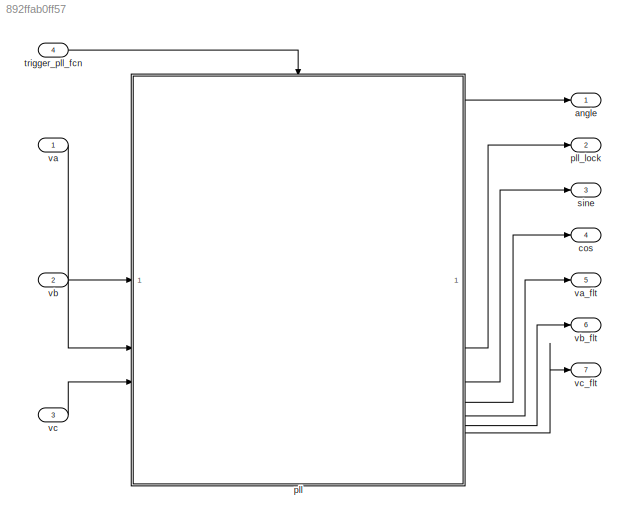
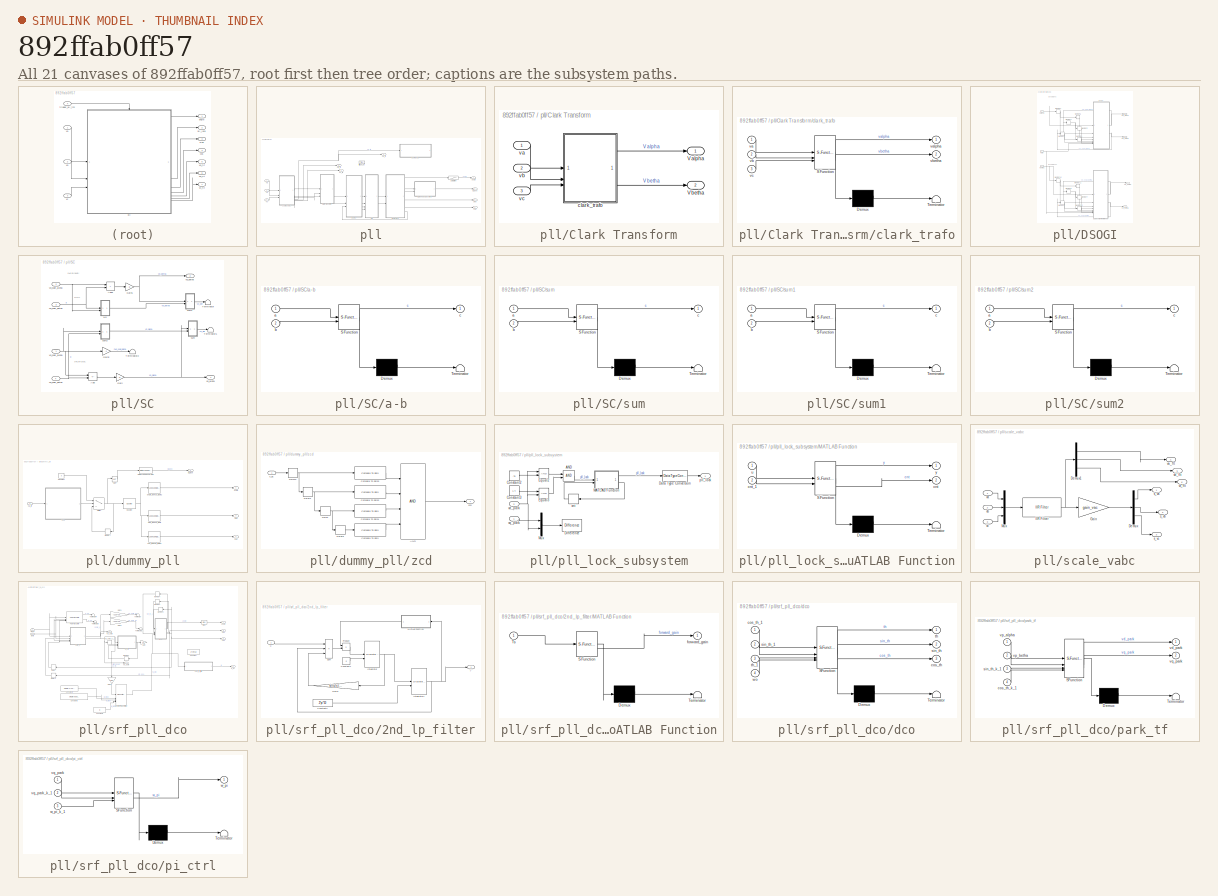
[diagram: thumbnail index - all 21 canvases of the model, root first then tree order]
MODEL slx_892ffab0ff57
KIND model
CONFIG AbsTol = auto
CONFIG EnableMultiTasking = off
CONFIG FixedStep = 1/10e3
CONFIG InitFcn = gain_vac=1/(220*sqrt(2));
CONFIG MaxStep = auto
CONFIG MinStep = auto
CONFIG RelTol = 1e-3
CONFIG SampleTimeConstraint = Unconstrained
CONFIG SolverName = FixedStepDiscrete
CONFIG StartTime = 0.0
CONFIG StopTime = 10.0
BLOCK [Outport] angle
BLOCK [Outport] cos
  Port = 4
BLOCK [SubSystem] pll
  RTWFcnNameOpts = Use subsystem name
  RTWFileNameOpts = Use subsystem name
  RTWMemSecFuncExecute = Default
  RTWMemSecFuncInitTerm = Default
  RTWSystemCode = Inline
BLOCK [SubSystem] pll/Clark Transform
  SystemSampleTime = ts
BLOCK [Outport] pll/Clark Transform/V alpha
BLOCK [Outport] pll/Clark Transform/V betha
  Port = 2
BLOCK [SubSystem] pll/Clark Transform/clark_trafo
  ErrorFcn = Stateflow.Translate.translate
  LibrarySourceBlock = simulink/User-Defined\nFunctions/MATLAB Function
  PermitHierarchicalResolution = ExplicitOnly
  SFBlockType = MATLAB Function
  TreatAsAtomicUnit = on
BLOCK [Demux] pll/Clark Transform/clark_trafo/ Demux 
  Outputs = 1
BLOCK [S-Function] pll/Clark Transform/clark_trafo/ SFunction 
  EnableBusSupport = on
  FunctionName = sf_sfun
  PortCounts = [3 3]
  SFcnIsStateOwnerBlock = off
  SFunctionDeploymentMode = off
  Tag = Stateflow S-Function 10
BLOCK [Terminator] pll/Clark Transform/clark_trafo/ Terminator 
BLOCK [Inport] pll/Clark Transform/clark_trafo/va
BLOCK [Outport] pll/Clark Transform/clark_trafo/valpha
BLOCK [Inport] pll/Clark Transform/clark_trafo/vb
  Port = 2
BLOCK [Outport] pll/Clark Transform/clark_trafo/vbetha
  Port = 2
BLOCK [Inport] pll/Clark Transform/clark_trafo/vc
  Port = 3
BLOCK [Inport] pll/Clark Transform/va
  OutDataTypeStr = single
BLOCK [Inport] pll/Clark Transform/vb
  OutDataTypeStr = single
  Port = 2
BLOCK [Inport] pll/Clark Transform/vc
  OutDataTypeStr = single
  Port = 3
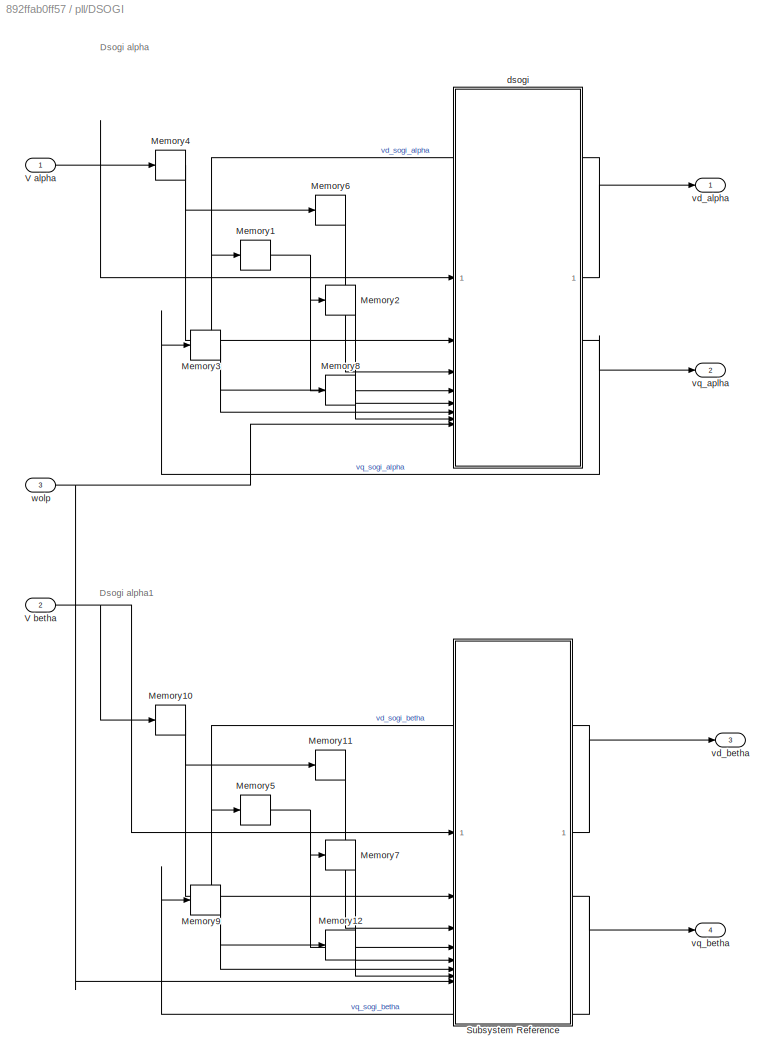
BLOCK [SubSystem] pll/DSOGI
  SystemSampleTime = ts
BLOCK [Memory] pll/DSOGI/Memory1
  InheritSampleTime = on
BLOCK [Memory] pll/DSOGI/Memory10
  InheritSampleTime = on
BLOCK [Memory] pll/DSOGI/Memory11
  InheritSampleTime = on
BLOCK [Memory] pll/DSOGI/Memory12
  InheritSampleTime = on
BLOCK [Memory] pll/DSOGI/Memory2
  InheritSampleTime = on
BLOCK [Memory] pll/DSOGI/Memory3
  InheritSampleTime = on
BLOCK [Memory] pll/DSOGI/Memory4
  InheritSampleTime = on
BLOCK [Memory] pll/DSOGI/Memory5
  InheritSampleTime = on
BLOCK [Memory] pll/DSOGI/Memory6
  InheritSampleTime = on
BLOCK [Memory] pll/DSOGI/Memory7
  InheritSampleTime = on
BLOCK [Memory] pll/DSOGI/Memory8
  InheritSampleTime = on
BLOCK [Memory] pll/DSOGI/Memory9
  InheritSampleTime = on
BLOCK [SubSystem] pll/DSOGI/Subsystem Reference
  ReferencedSubsystem = dsogi
BLOCK [Inport] pll/DSOGI/V alpha
  OutDataTypeStr = single
BLOCK [Inport] pll/DSOGI/V betha
  OutDataTypeStr = single
  Port = 2
BLOCK [SubSystem] pll/DSOGI/dsogi
  ReferencedSubsystem = dsogi
BLOCK [Outport] pll/DSOGI/vd_alpha
BLOCK [Outport] pll/DSOGI/vd_betha
  Port = 3
BLOCK [Outport] pll/DSOGI/vq_aplha
  Port = 2
BLOCK [Outport] pll/DSOGI/vq_betha
  Port = 4
BLOCK [Inport] pll/DSOGI/wolp
  OutDataTypeStr = single
  Port = 3
BLOCK [SubSystem] pll/SC
  SystemSampleTime = ts
BLOCK [Sum] pll/SC/Add
  IconShape = rectangular
  Inputs = +-
BLOCK [Sum] pll/SC/Add1
  IconShape = rectangular
BLOCK [Gain] pll/SC/Gain
  Gain = .5
  OutDataTypeStr = single
BLOCK [Gain] pll/SC/Gain1
  Gain = .5
  OutDataTypeStr = single
BLOCK [Gain] pll/SC/Gain2
  Commented = on
  Gain = -1
BLOCK [Terminator] pll/SC/Terminator
  Commented = on
BLOCK [Terminator] pll/SC/Terminator1
  Commented = on
BLOCK [Terminator] pll/SC/Terminator2
  Commented = on
BLOCK [SubSystem] pll/SC/a-b
  Commented = on
  ErrorFcn = Stateflow.Translate.translate
  LibrarySourceBlock = simulink/User-Defined\nFunctions/MATLAB Function
  PermitHierarchicalResolution = ExplicitOnly
  RTWSystemCode = Inline
  SFBlockType = MATLAB Function
  TreatAsAtomicUnit = on
  VariantControl = false()
BLOCK [Demux] pll/SC/a-b/ Demux 
  Outputs = 1
BLOCK [S-Function] pll/SC/a-b/ SFunction 
  EnableBusSupport = on
  FunctionName = sf_sfun
  PortCounts = [2 2]
  SFcnIsStateOwnerBlock = off
  SFunctionDeploymentMode = off
  Tag = Stateflow S-Function 17
BLOCK [Terminator] pll/SC/a-b/ Terminator 
BLOCK [Inport] pll/SC/a-b/a
BLOCK [Inport] pll/SC/a-b/b
  Port = 2
BLOCK [Outport] pll/SC/a-b/c
BLOCK [SubSystem] pll/SC/sum
  Commented = on
  ErrorFcn = Stateflow.Translate.translate
  LibrarySourceBlock = simulink/User-Defined\nFunctions/MATLAB Function
  PermitHierarchicalResolution = ExplicitOnly
  SFBlockType = MATLAB Function
  TreatAsAtomicUnit = on
  VariantControl = false()
BLOCK [Demux] pll/SC/sum/ Demux 
  Outputs = 1
BLOCK [S-Function] pll/SC/sum/ SFunction 
  EnableBusSupport = on
  FunctionName = sf_sfun
  PortCounts = [2 2]
  SFcnIsStateOwnerBlock = off
  SFunctionDeploymentMode = off
  Tag = Stateflow S-Function 21
BLOCK [Terminator] pll/SC/sum/ Terminator 
BLOCK [Inport] pll/SC/sum/a
BLOCK [Inport] pll/SC/sum/b
  Port = 2
BLOCK [Outport] pll/SC/sum/c
BLOCK [SubSystem] pll/SC/sum1
  Commented = on
  ErrorFcn = Stateflow.Translate.translate
  LibrarySourceBlock = simulink/User-Defined\nFunctions/MATLAB Function
  PermitHierarchicalResolution = ExplicitOnly
  SFBlockType = MATLAB Function
  TreatAsAtomicUnit = on
  VariantControl = false()
BLOCK [Demux] pll/SC/sum1/ Demux 
  Outputs = 1
BLOCK [S-Function] pll/SC/sum1/ SFunction 
  EnableBusSupport = on
  FunctionName = sf_sfun
  PortCounts = [2 2]
  SFcnIsStateOwnerBlock = off
  SFunctionDeploymentMode = off
  Tag = Stateflow S-Function 22
BLOCK [Terminator] pll/SC/sum1/ Terminator 
BLOCK [Inport] pll/SC/sum1/a
BLOCK [Inport] pll/SC/sum1/b
  Port = 2
BLOCK [Outport] pll/SC/sum1/c
BLOCK [SubSystem] pll/SC/sum2
  Commented = on
  ErrorFcn = Stateflow.Translate.translate
  LibrarySourceBlock = simulink/User-Defined\nFunctions/MATLAB Function
  PermitHierarchicalResolution = ExplicitOnly
  RTWSystemCode = Inline
  SFBlockType = MATLAB Function
  TreatAsAtomicUnit = on
  VariantControl = false()
BLOCK [Demux] pll/SC/sum2/ Demux 
  Outputs = 1
BLOCK [S-Function] pll/SC/sum2/ SFunction 
  EnableBusSupport = on
  FunctionName = sf_sfun
  PortCounts = [2 2]
  SFcnIsStateOwnerBlock = off
  SFunctionDeploymentMode = off
  Tag = Stateflow S-Function 18
BLOCK [Terminator] pll/SC/sum2/ Terminator 
BLOCK [Inport] pll/SC/sum2/a
BLOCK [Inport] pll/SC/sum2/b
  Port = 2
BLOCK [Outport] pll/SC/sum2/c
BLOCK [Inport] pll/SC/vd_sogi_alpha
  OutDataTypeStr = single
BLOCK [Inport] pll/SC/vd_sogi_betha
  OutDataTypeStr = single
  Port = 3
BLOCK [Outport] pll/SC/vp_alpha
BLOCK [Outport] pll/SC/vp_betha
  Port = 2
BLOCK [Inport] pll/SC/vq_sogi_alpha
  OutDataTypeStr = single
  Port = 2
BLOCK [Inport] pll/SC/vq_sogi_betha
  OutDataTypeStr = single
  Port = 4
BLOCK [Saturate] pll/Saturation
  LowerLimit = 0
  UpperLimit = 2*pi
BLOCK [Outport] pll/angle
BLOCK [Outport] pll/cos
  Port = 4
BLOCK [SubSystem] pll/dummy_pll
  Commented = on
BLOCK [Constant] pll/dummy_pll/Constant
  OutDataTypeStr = boolean
  SampleTime = -1
  Value = 0
BLOCK [Reference] pll/dummy_pll/Counter  REF=dspswit3/Counter
  SourceBlock = dspswit3/Counter
  SourceType = Counter
BLOCK [DataTypeConversion] pll/dummy_pll/Data Type Conversion
  OutDataTypeStr = single
  RndMeth = Floor
  SaturateOnIntegerOverflow = off
BLOCK [Memory] pll/dummy_pll/Memory
  InheritSampleTime = on
  InitialCondition = 1
  NameLocation = top
BLOCK [Logic] pll/dummy_pll/NOT
  AllPortsSameDT = off
  IconShape = distinctive
  Operator = NOT
  OutDataTypeStr = boolean
BLOCK [Switch] pll/dummy_pll/Switch
  Criteria = u2 > Threshold
  InputSameDT = off
  SaturateOnIntegerOverflow = off
BLOCK [Outport] pll/dummy_pll/angle
BLOCK [LookupNDDirect] pll/dummy_pll/angle_lookup_table2
  NumberOfTableDimensions = 1
  RemoveProtectionInput = on
  Table = single(2*pi*50*t)
BLOCK [Outport] pll/dummy_pll/cos
  Port = 4
BLOCK [LookupNDDirect] pll/dummy_pll/cos_lookup_table1
  NumberOfTableDimensions = 1
  RemoveProtectionInput = on
  Table = single(cos_th)
BLOCK [Outport] pll/dummy_pll/pll_lock
  Port = 2
BLOCK [Outport] pll/dummy_pll/sine
  Port = 3
BLOCK [LookupNDDirect] pll/dummy_pll/sine_lookup_table
  NumberOfTableDimensions = 1
  RemoveProtectionInput = on
  Table = single(sin_th)
BLOCK [Inport] pll/dummy_pll/va_flt
BLOCK [SubSystem] pll/dummy_pll/zcd
  SystemSampleTime = tsw
BLOCK [Logic] pll/dummy_pll/zcd/AND
  AllPortsSameDT = off
  Inputs = 4
  OutDataTypeStr = boolean
BLOCK [Reference] pll/dummy_pll/zcd/Compare To Zero  REF=simulink/Logic and Bit
Operations/Compare
To Zero
  SourceBlock = simulink/Logic and Bit\nOperations/Compare\nTo Zero
  SourceType = Compare To Zero
BLOCK [Reference] pll/dummy_pll/zcd/Compare To Zero1  REF=simulink/Logic and Bit
Operations/Compare
To Zero
  SourceBlock = simulink/Logic and Bit\nOperations/Compare\nTo Zero
  SourceType = Compare To Zero
BLOCK [Reference] pll/dummy_pll/zcd/Compare To Zero2  REF=simulink/Logic and Bit
Operations/Compare
To Zero
  SourceBlock = simulink/Logic and Bit\nOperations/Compare\nTo Zero
  SourceType = Compare To Zero
BLOCK [Reference] pll/dummy_pll/zcd/Compare To Zero3  REF=simulink/Logic and Bit
Operations/Compare
To Zero
  SourceBlock = simulink/Logic and Bit\nOperations/Compare\nTo Zero
  SourceType = Compare To Zero
BLOCK [Delay] pll/dummy_pll/zcd/Delay
  DelayLength = 4
  InputPortMap = u0
BLOCK [Delay] pll/dummy_pll/zcd/Delay1
  DelayLength = 1
  InputPortMap = u0
BLOCK [Delay] pll/dummy_pll/zcd/Delay2
  DelayLength = 0
  InputPortMap = u0
BLOCK [Delay] pll/dummy_pll/zcd/Delay3
  DelayLength = 5
  InputPortMap = u0
BLOCK [Inport] pll/dummy_pll/zcd/v_ac
  OutDataTypeStr = single
BLOCK [Outport] pll/dummy_pll/zcd/zcd
BLOCK [Outport] pll/pll_lock
  Port = 2
BLOCK [SubSystem] pll/pll_lock_subsystem
BLOCK [Logic] pll/pll_lock_subsystem/AND
  AllPortsSameDT = off
  IconShape = distinctive
  OutDataTypeStr = boolean
BLOCK [Constant] pll/pll_lock_subsystem/Constant2
  OutDataTypeStr = single
  SampleTime = -1
  Value = .75
BLOCK [Constant] pll/pll_lock_subsystem/Constant3
  OutDataTypeStr = single
  SampleTime = -1
  Value = 1.4
BLOCK [DataTypeConversion] pll/pll_lock_subsystem/Data Type Conversion
  OutDataTypeStr = single
  RndMeth = Floor
  SaturateOnIntegerOverflow = off
BLOCK [Reference] pll/pll_lock_subsystem/Difference  REF=simulink/Discrete/Difference
  Commented = on
  SourceBlock = simulink/Discrete/Difference
  SourceType = Difference
BLOCK [RelationalOperator] pll/pll_lock_subsystem/Equal2
  InputSameDT = off
  OutDataTypeStr = boolean
  RndMeth = Simplest
BLOCK [RelationalOperator] pll/pll_lock_subsystem/Equal3
  InputSameDT = off
  OutDataTypeStr = boolean
  RndMeth = Simplest
BLOCK [SubSystem] pll/pll_lock_subsystem/MATLAB Function
  ErrorFcn = Stateflow.Translate.translate
  PermitHierarchicalResolution = ExplicitOnly
  SFBlockType = MATLAB Function
  TreatAsAtomicUnit = on
BLOCK [Demux] pll/pll_lock_subsystem/MATLAB Function/ Demux 
  Outputs = 1
BLOCK [S-Function] pll/pll_lock_subsystem/MATLAB Function/ SFunction 
  EnableBusSupport = on
  FunctionName = sf_sfun
  PortCounts = [2 3]
  SFcnIsStateOwnerBlock = off
  SFunctionDeploymentMode = off
  Tag = Stateflow S-Function 3
BLOCK [Terminator] pll/pll_lock_subsystem/MATLAB Function/ Terminator 
BLOCK [Outport] pll/pll_lock_subsystem/MATLAB Function/cnt
  Port = 2
BLOCK [Inport] pll/pll_lock_subsystem/MATLAB Function/cnt_1
  Port = 2
BLOCK [Inport] pll/pll_lock_subsystem/MATLAB Function/u
BLOCK [Outport] pll/pll_lock_subsystem/MATLAB Function/y
BLOCK [Mux] pll/pll_lock_subsystem/Mux
  Commented = on
  DisplayOption = bar
  Inputs = 2
BLOCK [Memory] pll/pll_lock_subsystem/cnt
  InheritSampleTime = on
  NameLocation = top
BLOCK [Outport] pll/pll_lock_subsystem/pll_lock
BLOCK [Inport] pll/pll_lock_subsystem/vd_park
  Port = 2
BLOCK [Inport] pll/pll_lock_subsystem/vq_park
BLOCK [SubSystem] pll/scale_vabc
BLOCK [Demux] pll/scale_vabc/Demux
  Outputs = 3
BLOCK [Demux] pll/scale_vabc/Demux1
  Outputs = 3
BLOCK [Gain] pll/scale_vabc/Gain
  Gain = gain_vac
  OutDataTypeStr = single
BLOCK [Reference] pll/scale_vabc/IIR Filter  REF=mcbcontrolslib/IIR Filter
  Commented = through
  SourceBlock = mcbcontrolslib/IIR Filter
  SourceType = IIR Filter
BLOCK [Mux] pll/scale_vabc/Mux
  DisplayOption = bar
  Inputs = 3
BLOCK [Outport] pll/scale_vabc/s_va
BLOCK [Outport] pll/scale_vabc/s_vb
  Port = 2
BLOCK [Outport] pll/scale_vabc/s_vc
  Port = 3
BLOCK [Inport] pll/scale_vabc/va
BLOCK [Outport] pll/scale_vabc/va_flt
  Port = 4
BLOCK [Inport] pll/scale_vabc/vb
  Port = 2
BLOCK [Outport] pll/scale_vabc/vb_flt
  Port = 5
BLOCK [Inport] pll/scale_vabc/vc
  Port = 3
BLOCK [Outport] pll/scale_vabc/vc_flt
  Port = 6
BLOCK [Outport] pll/sine
  Port = 3
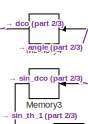
[diagram: pll/srf_pll_dco - part 1/3, top center region]
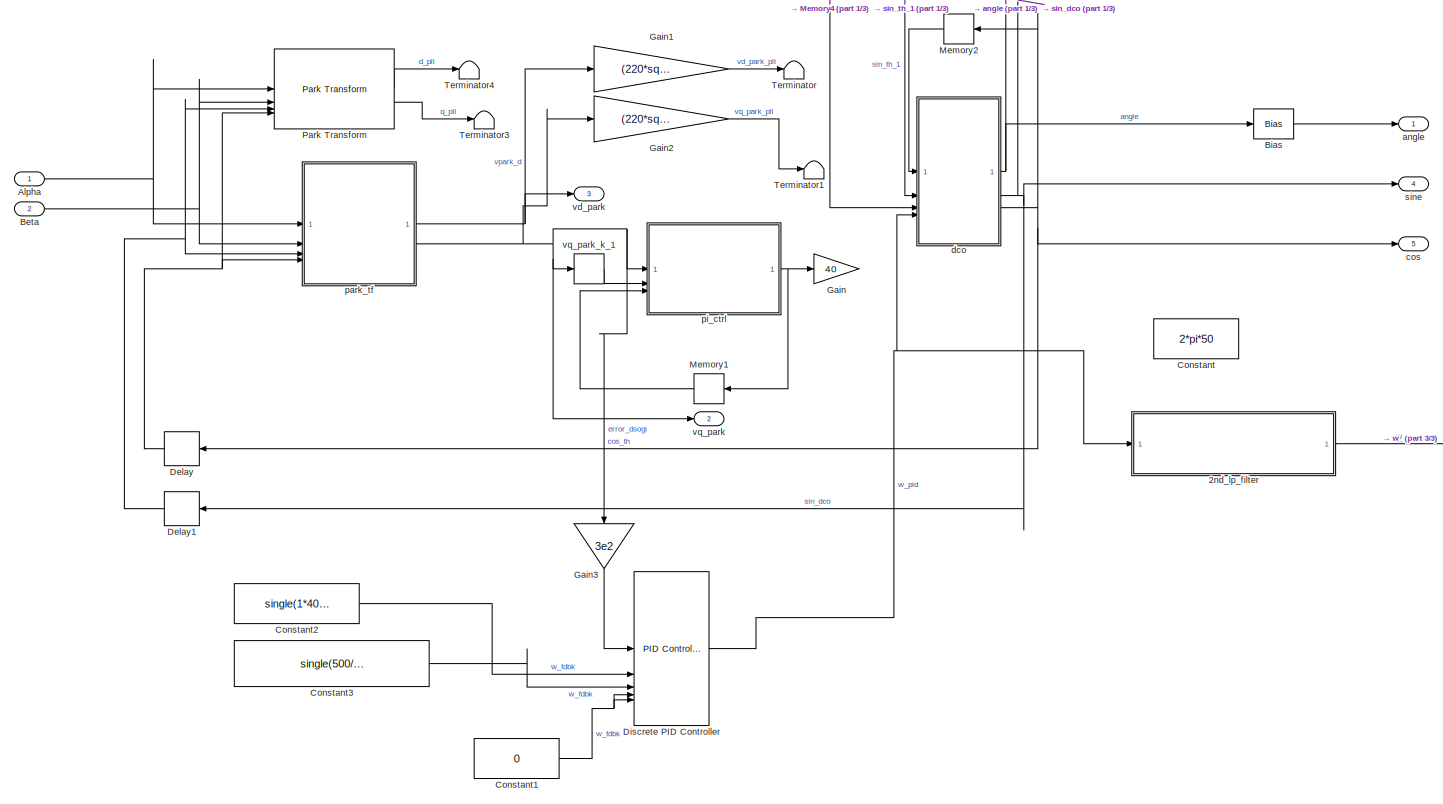
[diagram: pll/srf_pll_dco - part 2/3, most of the canvas]
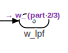
[diagram: pll/srf_pll_dco - part 3/3, middle right region]
BLOCK [SubSystem] pll/srf_pll_dco
BLOCK [SubSystem] pll/srf_pll_dco/2nd_lp_filter
BLOCK [Constant] pll/srf_pll_dco/2nd_lp_filter/Constant1
  OutDataTypeStr = single
  SampleTime = -1
  Value = 0
BLOCK [Constant] pll/srf_pll_dco/2nd_lp_filter/Constant2
  OutDataTypeStr = single
  SampleTime = -1
  Value = 2*pi*50
BLOCK [Gain] pll/srf_pll_dco/2nd_lp_filter/Gain1
  Gain = single(2*1/100)
BLOCK [DiscreteIntegrator] pll/srf_pll_dco/2nd_lp_filter/Integrator
  ICPrevOutput = DiscIntNeverNeededParam
  ICPrevScaledInput = DiscIntNeverNeededParam
  InitialConditionSetting = Auto
  InitialConditionSource = external
  IntegratorMethod = Accumulation: Forward Euler
  SampleTime = -1
  gainval = 1/8e3
BLOCK [DiscreteIntegrator] pll/srf_pll_dco/2nd_lp_filter/Integrator1
  ICPrevOutput = DiscIntNeverNeededParam
  ICPrevScaledInput = DiscIntNeverNeededParam
  InitialConditionSetting = Auto
  InitialConditionSource = external
  IntegratorMethod = Accumulation: Forward Euler
  SampleTime = -1
  gainval = 1/8e3
BLOCK [SubSystem] pll/srf_pll_dco/2nd_lp_filter/MATLAB Function
  ErrorFcn = Stateflow.Translate.translate
  NameLocation = top
  PermitHierarchicalResolution = ExplicitOnly
  SFBlockType = MATLAB Function
  TreatAsAtomicUnit = on
BLOCK [Demux] pll/srf_pll_dco/2nd_lp_filter/MATLAB Function/ Demux 
  Outputs = 1
BLOCK [S-Function] pll/srf_pll_dco/2nd_lp_filter/MATLAB Function/ SFunction 
  EnableBusSupport = on
  FunctionName = sf_sfun
  PortCounts = [1 2]
  SFcnIsStateOwnerBlock = off
  SFunctionDeploymentMode = off
  Tag = Stateflow S-Function 6
BLOCK [Terminator] pll/srf_pll_dco/2nd_lp_filter/MATLAB Function/ Terminator 
BLOCK [Inport] pll/srf_pll_dco/2nd_lp_filter/MATLAB Function/Ts
BLOCK [Outport] pll/srf_pll_dco/2nd_lp_filter/MATLAB Function/forward_gain
  VectorParamsAs1DForOutWhenUnconnected = off
BLOCK [Product] pll/srf_pll_dco/2nd_lp_filter/Product
BLOCK [Sum] pll/srf_pll_dco/2nd_lp_filter/Sum
  IconShape = rectangular
  Inputs = +--
BLOCK [Inport] pll/srf_pll_dco/2nd_lp_filter/u
BLOCK [Outport] pll/srf_pll_dco/2nd_lp_filter/y
  VectorParamsAs1DForOutWhenUnconnected = off
BLOCK [Inport] pll/srf_pll_dco/Alpha
  OutDataTypeStr = single
BLOCK [Inport] pll/srf_pll_dco/Beta
  OutDataTypeStr = single
  Port = 2
BLOCK [Bias] pll/srf_pll_dco/Bias
  Bias = pi
  Commented = through
  SaturateOnIntegerOverflow = off
BLOCK [Constant] pll/srf_pll_dco/Constant
  Commented = on
  OutDataTypeStr = single
  SampleTime = -1
  Value = 2*pi*50
BLOCK [Constant] pll/srf_pll_dco/Constant1
  OutDataTypeStr = single
  SampleTime = -1
  Value = 0
BLOCK [Constant] pll/srf_pll_dco/Constant2
  OutDataTypeStr = single
  SampleTime = -1
  Value = single(1*40);
BLOCK [Constant] pll/srf_pll_dco/Constant3
  OutDataTypeStr = single
  SampleTime = -1
  Value = single(500/8e3)
BLOCK [Delay] pll/srf_pll_dco/Delay
  DelayLength = 1
  InputPortMap = u0
  NameLocation = top
BLOCK [Delay] pll/srf_pll_dco/Delay1
  DelayLength = 1
  InputPortMap = u0
  NameLocation = top
BLOCK [Reference] pll/srf_pll_dco/Discrete PID Controller  REF=slpidlib/PID Controller
  LibrarySourceBlock = simulink/Discrete/Discrete PID Controller
  SourceBlock = slpidlib/PID Controller
  SourceType = PID 1dof
BLOCK [Gain] pll/srf_pll_dco/Gain
  Commented = on
  Gain = 40
  OutDataTypeStr = single
BLOCK [Gain] pll/srf_pll_dco/Gain1
  Gain = (220*sqrt(2))
BLOCK [Gain] pll/srf_pll_dco/Gain2
  Gain = (220*sqrt(2))
BLOCK [Gain] pll/srf_pll_dco/Gain3
  Gain = 3e2
  NameLocation = left
BLOCK [Memory] pll/srf_pll_dco/Memory1
  Commented = on
  InheritSampleTime = on
  NameLocation = top
BLOCK [Memory] pll/srf_pll_dco/Memory2
  InheritSampleTime = on
  InitialCondition = .99
  NameLocation = top
BLOCK [Memory] pll/srf_pll_dco/Memory3
  InheritSampleTime = on
  NameLocation = top
BLOCK [Memory] pll/srf_pll_dco/Memory4
  InheritSampleTime = on
  NameLocation = top
BLOCK [Reference] pll/srf_pll_dco/Park Transform  REF=mcbcontrolslib/Park Transform
  Commented = on
  LibrarySourceBlock = mcbhdllib/Controls/Math Transforms/Park Transform
  SourceBlock = mcbcontrolslib/Park Transform
  SourceType = Park Transform
BLOCK [Terminator] pll/srf_pll_dco/Terminator
BLOCK [Terminator] pll/srf_pll_dco/Terminator1
BLOCK [Terminator] pll/srf_pll_dco/Terminator3
BLOCK [Terminator] pll/srf_pll_dco/Terminator4
BLOCK [Outport] pll/srf_pll_dco/angle
BLOCK [Outport] pll/srf_pll_dco/cos
  Port = 5
BLOCK [SubSystem] pll/srf_pll_dco/dco
  ErrorFcn = Stateflow.Translate.translate
  LibrarySourceBlock = simulink/User-Defined\nFunctions/MATLAB Function
  PermitHierarchicalResolution = ExplicitOnly
  SFBlockType = MATLAB Function
  TreatAsAtomicUnit = on
  VariantControl = false()
BLOCK [Demux] pll/srf_pll_dco/dco/ Demux 
  Outputs = 1
BLOCK [S-Function] pll/srf_pll_dco/dco/ SFunction 
  EnableBusSupport = on
  FunctionName = sf_sfun
  PortCounts = [4 4]
  SFcnIsStateOwnerBlock = off
  SFunctionDeploymentMode = off
  Tag = Stateflow S-Function 23
BLOCK [Terminator] pll/srf_pll_dco/dco/ Terminator 
BLOCK [Outport] pll/srf_pll_dco/dco/cos_th
  Port = 3
BLOCK [Inport] pll/srf_pll_dco/dco/cos_th_1
BLOCK [Outport] pll/srf_pll_dco/dco/sin_th
  Port = 2
BLOCK [Inport] pll/srf_pll_dco/dco/sin_th_1
  Port = 2
BLOCK [Outport] pll/srf_pll_dco/dco/th
BLOCK [Inport] pll/srf_pll_dco/dco/th_1
  Port = 3
BLOCK [Inport] pll/srf_pll_dco/dco/wo
  Port = 4
BLOCK [SubSystem] pll/srf_pll_dco/park_tf
  ErrorFcn = Stateflow.Translate.translate
  LibrarySourceBlock = simulink/User-Defined\nFunctions/MATLAB Function
  PermitHierarchicalResolution = ExplicitOnly
  SFBlockType = MATLAB Function
  TreatAsAtomicUnit = on
  VariantControl = false()
BLOCK [Demux] pll/srf_pll_dco/park_tf/ Demux 
  Outputs = 1
BLOCK [S-Function] pll/srf_pll_dco/park_tf/ SFunction 
  EnableBusSupport = on
  FunctionName = sf_sfun
  PortCounts = [4 3]
  SFcnIsStateOwnerBlock = off
  SFunctionDeploymentMode = off
  Tag = Stateflow S-Function 24
BLOCK [Terminator] pll/srf_pll_dco/park_tf/ Terminator 
BLOCK [Inport] pll/srf_pll_dco/park_tf/cos_th_k_1
  Port = 4
BLOCK [Inport] pll/srf_pll_dco/park_tf/sin_th_k_1
  Port = 3
BLOCK [Outport] pll/srf_pll_dco/park_tf/vd_park
BLOCK [Inport] pll/srf_pll_dco/park_tf/vp_alpha
BLOCK [Inport] pll/srf_pll_dco/park_tf/vp_betha
  Port = 2
BLOCK [Outport] pll/srf_pll_dco/park_tf/vq_park
  Port = 2
BLOCK [SubSystem] pll/srf_pll_dco/pi_ctrl
  Commented = on
  ErrorFcn = Stateflow.Translate.translate
  LibrarySourceBlock = simulink/User-Defined\nFunctions/MATLAB Function
  PermitHierarchicalResolution = ExplicitOnly
  SFBlockType = MATLAB Function
  TreatAsAtomicUnit = on
  VariantControl = false()
BLOCK [Demux] pll/srf_pll_dco/pi_ctrl/ Demux 
  Outputs = 1
BLOCK [S-Function] pll/srf_pll_dco/pi_ctrl/ SFunction 
  EnableBusSupport = on
  FunctionName = sf_sfun
  PortCounts = [3 2]
  SFcnIsStateOwnerBlock = off
  SFunctionDeploymentMode = off
  Tag = Stateflow S-Function 25
BLOCK [Terminator] pll/srf_pll_dco/pi_ctrl/ Terminator 
BLOCK [Inport] pll/srf_pll_dco/pi_ctrl/vq_park
BLOCK [Inport] pll/srf_pll_dco/pi_ctrl/vq_park_k_1
  Port = 2
BLOCK [Outport] pll/srf_pll_dco/pi_ctrl/w_pi
BLOCK [Inport] pll/srf_pll_dco/pi_ctrl/w_pi_k_1
  Port = 3
BLOCK [Outport] pll/srf_pll_dco/sine
  Port = 4
BLOCK [Outport] pll/srf_pll_dco/vd_park
  Port = 3
BLOCK [Outport] pll/srf_pll_dco/vq_park
  Port = 2
BLOCK [Memory] pll/srf_pll_dco/vq_park_k_1
  Commented = on
  InheritSampleTime = on
BLOCK [Outport] pll/srf_pll_dco/w_lpf
  Port = 6
BLOCK [TriggerPort] pll/trigger_pll
  PortDimensions = 1
  SampleTime = 1/10e3
  StatesWhenEnabling = held
  TriggerType = function-call
  VariantControl = (inherit)
BLOCK [Inport] pll/va
  OutDataTypeStr = single
BLOCK [Outport] pll/va_flt
  Port = 5
BLOCK [Inport] pll/vb
  OutDataTypeStr = single
  Port = 2
BLOCK [Outport] pll/vb_flt
  Port = 6
BLOCK [Inport] pll/vc
  OutDataTypeStr = single
  Port = 3
BLOCK [Outport] pll/vc_flt
  Port = 7
BLOCK [Outport] pll_lock
  Port = 2
BLOCK [Outport] sine
  Port = 3
BLOCK [Inport] trigger_pll_fcn
  OutDataTypeStr = single
  OutputFunctionCall = on
  Port = 4
BLOCK [Inport] va
  OutDataTypeStr = single
BLOCK [Outport] va_flt
  Port = 5
BLOCK [Inport] vb
  OutDataTypeStr = single
  Port = 2
BLOCK [Outport] vb_flt
  Port = 6
BLOCK [Inport] vc
  OutDataTypeStr = single
  Port = 3
BLOCK [Outport] vc_flt
  Port = 7
ANNOTATION pll/DSOGI: Dsogi alpha
ANNOTATION pll/DSOGI: Dsogi alpha1
ANNOTATION pll/SC: c=0.5*(a-b);
ANNOTATION pll/SC: c=0.5*(a+b);
ANNOTATION pll/SC: NSC
LINE pll/Clark Transform/clark_trafo:1 -> pll/Clark Transform/V alpha:1
LINE pll/Clark Transform/clark_trafo:2 -> pll/Clark Transform/V betha:1
LINE pll/Clark Transform/va:1 -> pll/Clark Transform/clark_trafo:1
LINE pll/Clark Transform/vb:1 -> pll/Clark Transform/clark_trafo:2
LINE pll/Clark Transform/vc:1 -> pll/Clark Transform/clark_trafo:3
LINE pll/Clark Transform:1 -> pll/DSOGI:1
LINE pll/Clark Transform:2 -> pll/DSOGI:2
NET pll/DSOGI/Memory10:1 -> pll/DSOGI/Memory11:1, pll/DSOGI/Subsystem Reference:2
LINE pll/DSOGI/Memory11:1 -> pll/DSOGI/Subsystem Reference:3
LINE pll/DSOGI/Memory12:1 -> pll/DSOGI/Subsystem Reference:7
NET pll/DSOGI/Memory1:1 -> pll/DSOGI/Memory2:1, pll/DSOGI/dsogi:4
LINE pll/DSOGI/Memory2:1 -> pll/DSOGI/dsogi:5
NET pll/DSOGI/Memory3:1 -> pll/DSOGI/Memory8:1, pll/DSOGI/dsogi:6
NET pll/DSOGI/Memory4:1 -> pll/DSOGI/Memory6:1, pll/DSOGI/dsogi:2
NET pll/DSOGI/Memory5:1 -> pll/DSOGI/Memory7:1, pll/DSOGI/Subsystem Reference:4
LINE pll/DSOGI/Memory6:1 -> pll/DSOGI/dsogi:3
LINE pll/DSOGI/Memory7:1 -> pll/DSOGI/Subsystem Reference:5
LINE pll/DSOGI/Memory8:1 -> pll/DSOGI/dsogi:7
NET pll/DSOGI/Memory9:1 -> pll/DSOGI/Memory12:1, pll/DSOGI/Subsystem Reference:6
NET pll/DSOGI/Subsystem Reference:1 -> pll/DSOGI/Memory5:1, pll/DSOGI/vd_betha:1
NET pll/DSOGI/Subsystem Reference:2 -> pll/DSOGI/Memory9:1, pll/DSOGI/vq_betha:1
NET pll/DSOGI/V alpha:1 -> pll/DSOGI/Memory4:1, pll/DSOGI/dsogi:1
NET pll/DSOGI/V betha:1 -> pll/DSOGI/Memory10:1, pll/DSOGI/Subsystem Reference:1
NET pll/DSOGI/dsogi:1 -> pll/DSOGI/Memory1:1, pll/DSOGI/vd_alpha:1
NET pll/DSOGI/dsogi:2 -> pll/DSOGI/Memory3:1, pll/DSOGI/vq_aplha:1
NET pll/DSOGI/wolp:1 -> pll/DSOGI/Subsystem Reference:8, pll/DSOGI/dsogi:8
LINE pll/DSOGI:1 -> pll/SC:1
LINE pll/DSOGI:2 -> pll/SC:2
LINE pll/DSOGI:3 -> pll/SC:3
LINE pll/DSOGI:4 -> pll/SC:4
LINE pll/SC/Add1:1 -> pll/SC/Gain1:1
LINE pll/SC/Add:1 -> pll/SC/Gain:1
NET pll/SC/Gain1:1 -> pll/SC/sum1:1, pll/SC/vp_betha:1
LINE pll/SC/Gain2:1 -> pll/SC/Terminator2:1
NET pll/SC/Gain:1 -> pll/SC/sum:1, pll/SC/vp_alpha:1
LINE pll/SC/a-b:1 -> pll/SC/sum1:2
LINE pll/SC/sum1:1 -> pll/SC/Terminator:1
LINE pll/SC/sum2:1 -> pll/SC/sum:2
LINE pll/SC/sum:1 -> pll/SC/Terminator1:1
NET pll/SC/vd_sogi_alpha:1 -> pll/SC/Add:1, pll/SC/Gain2:1, pll/SC/sum2:1
NET pll/SC/vd_sogi_betha:1 -> pll/SC/Add1:2, pll/SC/a-b:1
NET pll/SC/vq_sogi_alpha:1 -> pll/SC/Add1:1, pll/SC/a-b:2
NET pll/SC/vq_sogi_betha:1 -> pll/SC/Add:2, pll/SC/sum2:2
LINE pll/SC:1 -> pll/srf_pll_dco:1
LINE pll/SC:2 -> pll/srf_pll_dco:2
LINE pll/Saturation:1 -> pll/angle:1
LINE pll/dummy_pll/Constant:1 -> pll/dummy_pll/Switch:1
NET pll/dummy_pll/Counter:1 -> pll/dummy_pll/angle_lookup_table2:1, pll/dummy_pll/cos_lookup_table1:1, pll/dummy_pll/sine_lookup_table:1
LINE pll/dummy_pll/Data Type Conversion:1 -> pll/dummy_pll/pll_lock:1
LINE pll/dummy_pll/Memory:1 -> pll/dummy_pll/Switch:3
LINE pll/dummy_pll/NOT:1 -> pll/dummy_pll/Data Type Conversion:1
NET pll/dummy_pll/Switch:1 -> pll/dummy_pll/Counter:1, pll/dummy_pll/Memory:1, pll/dummy_pll/NOT:1
LINE pll/dummy_pll/angle_lookup_table2:1 -> pll/dummy_pll/angle:1
LINE pll/dummy_pll/cos_lookup_table1:1 -> pll/dummy_pll/cos:1
LINE pll/dummy_pll/sine_lookup_table:1 -> pll/dummy_pll/sine:1
LINE pll/dummy_pll/va_flt:1 -> pll/dummy_pll/zcd:1
LINE pll/dummy_pll/zcd/AND:1 -> pll/dummy_pll/zcd/zcd:1
LINE pll/dummy_pll/zcd/Compare To Zero1:1 -> pll/dummy_pll/zcd/AND:3
LINE pll/dummy_pll/zcd/Compare To Zero2:1 -> pll/dummy_pll/zcd/AND:2
LINE pll/dummy_pll/zcd/Compare To Zero3:1 -> pll/dummy_pll/zcd/AND:1
LINE pll/dummy_pll/zcd/Compare To Zero:1 -> pll/dummy_pll/zcd/AND:4
NET pll/dummy_pll/zcd/Delay1:1 -> pll/dummy_pll/zcd/Compare To Zero2:1, pll/dummy_pll/zcd/Delay:1
NET pll/dummy_pll/zcd/Delay2:1 -> pll/dummy_pll/zcd/Compare To Zero3:1, pll/dummy_pll/zcd/Delay1:1
LINE pll/dummy_pll/zcd/Delay3:1 -> pll/dummy_pll/zcd/Compare To Zero:1
NET pll/dummy_pll/zcd/Delay:1 -> pll/dummy_pll/zcd/Compare To Zero1:1, pll/dummy_pll/zcd/Delay3:1
LINE pll/dummy_pll/zcd/v_ac:1 -> pll/dummy_pll/zcd/Delay2:1
LINE pll/dummy_pll/zcd:1 -> pll/dummy_pll/Switch:2
LINE pll/pll_lock_subsystem/AND:1 -> pll/pll_lock_subsystem/MATLAB Function:1
LINE pll/pll_lock_subsystem/Constant2:1 -> pll/pll_lock_subsystem/Equal2:2
LINE pll/pll_lock_subsystem/Constant3:1 -> pll/pll_lock_subsystem/Equal3:1
LINE pll/pll_lock_subsystem/Data Type Conversion:1 -> pll/pll_lock_subsystem/pll_lock:1
LINE pll/pll_lock_subsystem/Equal2:1 -> pll/pll_lock_subsystem/AND:1
LINE pll/pll_lock_subsystem/Equal3:1 -> pll/pll_lock_subsystem/AND:2
LINE pll/pll_lock_subsystem/MATLAB Function:1 -> pll/pll_lock_subsystem/Data Type Conversion:1
LINE pll/pll_lock_subsystem/MATLAB Function:2 -> pll/pll_lock_subsystem/cnt:1
LINE pll/pll_lock_subsystem/Mux:1 -> pll/pll_lock_subsystem/Difference:1
LINE pll/pll_lock_subsystem/cnt:1 -> pll/pll_lock_subsystem/MATLAB Function:2
NET pll/pll_lock_subsystem/vd_park:1 -> pll/pll_lock_subsystem/Equal2:1, pll/pll_lock_subsystem/Equal3:2, pll/pll_lock_subsystem/Mux:2
LINE pll/pll_lock_subsystem/vq_park:1 -> pll/pll_lock_subsystem/Mux:1
LINE pll/pll_lock_subsystem:1 -> pll/pll_lock:1
LINE pll/scale_vabc/Demux1:1 -> pll/scale_vabc/va_flt:1
LINE pll/scale_vabc/Demux1:2 -> pll/scale_vabc/vb_flt:1
LINE pll/scale_vabc/Demux1:3 -> pll/scale_vabc/vc_flt:1
LINE pll/scale_vabc/Demux:1 -> pll/scale_vabc/s_va:1
LINE pll/scale_vabc/Demux:2 -> pll/scale_vabc/s_vb:1
LINE pll/scale_vabc/Demux:3 -> pll/scale_vabc/s_vc:1
LINE pll/scale_vabc/Gain:1 -> pll/scale_vabc/Demux:1
NET pll/scale_vabc/IIR Filter:1 -> pll/scale_vabc/Demux1:1, pll/scale_vabc/Gain:1
LINE pll/scale_vabc/Mux:1 -> pll/scale_vabc/IIR Filter:1
LINE pll/scale_vabc/va:1 -> pll/scale_vabc/Mux:1
LINE pll/scale_vabc/vb:1 -> pll/scale_vabc/Mux:2
LINE pll/scale_vabc/vc:1 -> pll/scale_vabc/Mux:3
LINE pll/scale_vabc:1 -> pll/Clark Transform:1
LINE pll/scale_vabc:2 -> pll/Clark Transform:2
LINE pll/scale_vabc:3 -> pll/Clark Transform:3
NET pll/scale_vabc:4 -> pll/dummy_pll:1, pll/va_flt:1
LINE pll/scale_vabc:5 -> pll/vb_flt:1
LINE pll/scale_vabc:6 -> pll/vc_flt:1
LINE pll/srf_pll_dco/2nd_lp_filter/Constant1:1 -> pll/srf_pll_dco/2nd_lp_filter/Integrator:2
LINE pll/srf_pll_dco/2nd_lp_filter/Constant2:1 -> pll/srf_pll_dco/2nd_lp_filter/Integrator1:2
LINE pll/srf_pll_dco/2nd_lp_filter/Gain1:1 -> pll/srf_pll_dco/2nd_lp_filter/Sum:3
NET pll/srf_pll_dco/2nd_lp_filter/Integrator1:1 -> pll/srf_pll_dco/2nd_lp_filter/MATLAB Function:1, pll/srf_pll_dco/2nd_lp_filter/Sum:2, pll/srf_pll_dco/2nd_lp_filter/y:1
NET pll/srf_pll_dco/2nd_lp_filter/Integrator:1 -> pll/srf_pll_dco/2nd_lp_filter/Gain1:1, pll/srf_pll_dco/2nd_lp_filter/Integrator1:1
LINE pll/srf_pll_dco/2nd_lp_filter/MATLAB Function:1 -> pll/srf_pll_dco/2nd_lp_filter/Product:1
LINE pll/srf_pll_dco/2nd_lp_filter/Product:1 -> pll/srf_pll_dco/2nd_lp_filter/Integrator:1
LINE pll/srf_pll_dco/2nd_lp_filter/Sum:1 -> pll/srf_pll_dco/2nd_lp_filter/Product:2
LINE pll/srf_pll_dco/2nd_lp_filter/u:1 -> pll/srf_pll_dco/2nd_lp_filter/Sum:1
LINE pll/srf_pll_dco/2nd_lp_filter:1 -> pll/srf_pll_dco/w_lpf:1
NET pll/srf_pll_dco/Alpha:1 -> pll/srf_pll_dco/Park Transform:1, pll/srf_pll_dco/park_tf:1
NET pll/srf_pll_dco/Beta:1 -> pll/srf_pll_dco/Park Transform:2, pll/srf_pll_dco/park_tf:2
LINE pll/srf_pll_dco/Bias:1 -> pll/srf_pll_dco/angle:1
NET pll/srf_pll_dco/Constant1:1 -> pll/srf_pll_dco/Discrete PID Controller:4, pll/srf_pll_dco/Discrete PID Controller:5
LINE pll/srf_pll_dco/Constant2:1 -> pll/srf_pll_dco/Discrete PID Controller:2
LINE pll/srf_pll_dco/Constant3:1 -> pll/srf_pll_dco/Discrete PID Controller:3
NET pll/srf_pll_dco/Delay1:1 -> pll/srf_pll_dco/Park Transform:3, pll/srf_pll_dco/park_tf:3
NET pll/srf_pll_dco/Delay:1 -> pll/srf_pll_dco/Park Transform:4, pll/srf_pll_dco/park_tf:4
NET pll/srf_pll_dco/Discrete PID Controller:1 -> pll/srf_pll_dco/2nd_lp_filter:1, pll/srf_pll_dco/dco:4
LINE pll/srf_pll_dco/Gain1:1 -> pll/srf_pll_dco/Terminator:1
LINE pll/srf_pll_dco/Gain2:1 -> pll/srf_pll_dco/Terminator1:1
LINE pll/srf_pll_dco/Gain3:1 -> pll/srf_pll_dco/Discrete PID Controller:1
LINE pll/srf_pll_dco/Memory1:1 -> pll/srf_pll_dco/pi_ctrl:3
LINE pll/srf_pll_dco/Memory2:1 -> pll/srf_pll_dco/dco:1
LINE pll/srf_pll_dco/Memory3:1 -> pll/srf_pll_dco/dco:2
LINE pll/srf_pll_dco/Memory4:1 -> pll/srf_pll_dco/dco:3
LINE pll/srf_pll_dco/Park Transform:1 -> pll/srf_pll_dco/Terminator4:1
LINE pll/srf_pll_dco/Park Transform:2 -> pll/srf_pll_dco/Terminator3:1
NET pll/srf_pll_dco/dco:1 -> pll/srf_pll_dco/Bias:1, pll/srf_pll_dco/Memory4:1
NET pll/srf_pll_dco/dco:2 -> pll/srf_pll_dco/Delay1:1, pll/srf_pll_dco/Memory3:1, pll/srf_pll_dco/sine:1
NET pll/srf_pll_dco/dco:3 -> pll/srf_pll_dco/Delay:1, pll/srf_pll_dco/Memory2:1, pll/srf_pll_dco/cos:1
NET pll/srf_pll_dco/park_tf:1 -> pll/srf_pll_dco/Gain1:1, pll/srf_pll_dco/vd_park:1
NET pll/srf_pll_dco/park_tf:2 -> pll/srf_pll_dco/Gain2:1, pll/srf_pll_dco/Gain3:1, pll/srf_pll_dco/pi_ctrl:1, pll/srf_pll_dco/vq_park:1, pll/srf_pll_dco/vq_park_k_1:1
NET pll/srf_pll_dco/pi_ctrl:1 -> pll/srf_pll_dco/Gain:1, pll/srf_pll_dco/Memory1:1
LINE pll/srf_pll_dco/vq_park_k_1:1 -> pll/srf_pll_dco/pi_ctrl:2
LINE pll/srf_pll_dco:1 -> pll/Saturation:1
LINE pll/srf_pll_dco:2 -> pll/pll_lock_subsystem:1
LINE pll/srf_pll_dco:3 -> pll/pll_lock_subsystem:2
LINE pll/srf_pll_dco:4 -> pll/sine:1
LINE pll/srf_pll_dco:5 -> pll/cos:1
LINE pll/srf_pll_dco:6 -> pll/DSOGI:3
LINE pll/va:1 -> pll/scale_vabc:1
LINE pll/vb:1 -> pll/scale_vabc:2
LINE pll/vc:1 -> pll/scale_vabc:3
LINE pll:1 -> angle:1
LINE pll:2 -> pll_lock:1
LINE pll:3 -> sine:1
LINE pll:4 -> cos:1
LINE pll:5 -> va_flt:1
LINE pll:6 -> vb_flt:1
LINE pll:7 -> vc_flt:1
LINE trigger_pll_fcn:1 -> pll:trigger
LINE va:1 -> pll:1
LINE vb:1 -> pll:2
LINE vc:1 -> pll:3
note: NET lines group one-source signal fan-out (src -> all destinations, sorted); 1:1 wires keep LINE
CHART pll/pll_lock_subsystem/MATLAB Function states=1 transitions=1
  STATE_LABEL 'eML_blk_kernel()'
  STATE_LABEL 'SCRIPT:\nfunction [y,cnt] = fcn(u, cnt_1)\ny=false;\ncnt = cnt_1;\nif u == true\n   if cnt_1<=single(5*(10e3/50)) \n      cnt = cnt_1 + single(1.0);\n      y=false;\n   else \n      y=true;\n   end\nelse \n   y=false;\n   cnt = single(0.0);\nend\n\n\n\n\n'
CHART pll/srf_pll_dco/2nd_lp_filter/MATLAB Function states=1 transitions=1
  STATE_LABEL 'eML_blk_kernel()'
  STATE_LABEL 'SCRIPT:\nfunction forward_gain  = fcn(Ts)\n\n\n    forward_gain = single(1/max(Ts,single(1/(100*100))));\n   \nend'
CHART pll/Clark Transform/clark_trafo states=1 transitions=1
  STATE_LABEL 'eML_blk_kernel()'
  STATE_LABEL 'SCRIPT:\nfunction [valpha, vbetha] = clarktrans(va,vb,vc)\ntw_thr = single((2/3));\nsqrt_3 = single(sqrt(3));\npoint_5 = single(.5);\n\nvalpha=(tw_thr*(va-(point_5*vb)-(point_5*vc)));\nvbetha=( (tw_thr*(sqrt_3*point_5))*(vb-vc) );\n\nend\n\n'
CHART pll/SC/a-b states=1 transitions=1
  STATE_LABEL 'eML_blk_kernel()'
  STATE_LABEL 'SCRIPT:\nfunction c = fcn(a,b)\n\nc=0.5*(a-b);\nend'
CHART pll/SC/sum2 states=1 transitions=1
  STATE_LABEL 'eML_blk_kernel()'
  STATE_LABEL 'SCRIPT:\nfunction c = fcn(a,b)\n\nc=0.5*(a+b);\nend'
CHART pll/SC/sum states=1 transitions=1
  STATE_LABEL 'eML_blk_kernel()'
  STATE_LABEL 'SCRIPT:\nfunction c = fcn(a,b)\n\nc=(a-b);\nend'
CHART pll/SC/sum1 states=1 transitions=1
  STATE_LABEL 'eML_blk_kernel()'
  STATE_LABEL 'SCRIPT:\nfunction c = fcn(a,b)\n\nc=(a-b);\nend'
CHART pll/srf_pll_dco/dco states=1 transitions=1
  STATE_LABEL 'eML_blk_kernel()'
  STATE_LABEL 'SCRIPT:\nfunction [th,sin_th,cos_th]= dco(cos_th_1,sin_th_1,th_1,wo)\n        % ws=(2*pi*50);\n        wout=(wo);\n        tsample=single(1/8e3);\n        %Sin is for showing the overlaping w the input \n        sin_th=sin_th_1+(cos_th_1*wout*tsample); %Sin(t+dt)=sin(t)+cos(t)*dt\n        cos_th=cos_th_1-(sin_th_1*wout*tsample);\n        \n        sin_th=max([sin_th -1]);\n        cos_th=max([cos_th -1]);\n\n...<+241ch>'
CHART pll/srf_pll_dco/park_tf states=1 transitions=1
  STATE_LABEL 'eML_blk_kernel()'
  STATE_LABEL 'SCRIPT:\n  function [vd_park,vq_park] = park(vp_alpha,vp_betha,sin_th_k_1,cos_th_k_1)\n\nvq_park=(sin_th_k_1*vp_betha)+(cos_th_k_1*vp_alpha);%(-sin_th_k_1*vp_alpha+cos_th_k_1*vp_betha);\nvd_park=(sin_th_k_1*vp_alpha)-(cos_th_k_1*vp_betha);\n\n\n\n\nend\n'
CHART pll/srf_pll_dco/pi_ctrl states=1 transitions=1
  STATE_LABEL 'eML_blk_kernel()'
  STATE_LABEL 'SCRIPT:\nfunction w_pi = pi_ctrl(vq_park,vq_park_k_1,w_pi_k_1)\n\nfs=single(8e3);\nts=1/fs;\nwn_pi=single(100*2*pi);%200*2*pi; \nsig_pi=single(.3);%.05;\nvac_peak_pi=single(3*3.3);\n\nkp = single(2*wn_pi*sig_pi/vac_peak_pi);\nki = single(2*vac_peak_pi/(4*sig_pi*sig_pi));\n\npi_n1=kp;\npi_n2=(ki*ts)-kp;\nsat=single(285);\nw_pi=((vq_park)*pi_n1+(vq_park_k_1)*pi_n2+w_pi_k_1);\n\n% \n% if (w_pi*40)>single(sat*2*pi)\n%  ...<+103ch>'
CHART  states=0 transitions=0
CHART  states=0 transitions=0
CHART  states=0 transitions=0
CHART  states=0 transitions=0
CHART  states=0 transitions=0
CHART  states=0 transitions=0
CHART  states=0 transitions=0
CHART  states=0 transitions=0
CHART  states=0 transitions=0
CHART  states=0 transitions=0
